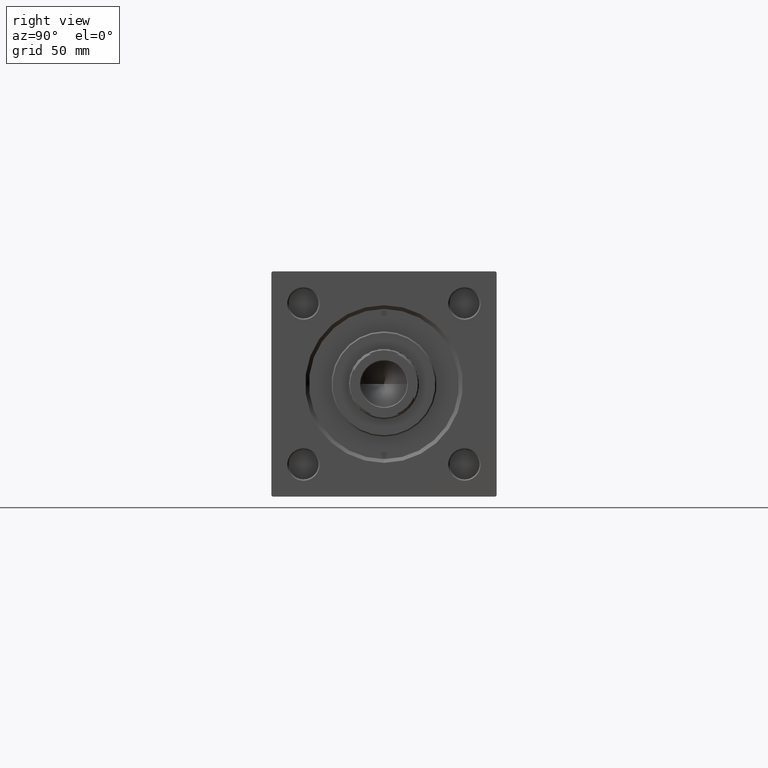
[diagram: clean part render]
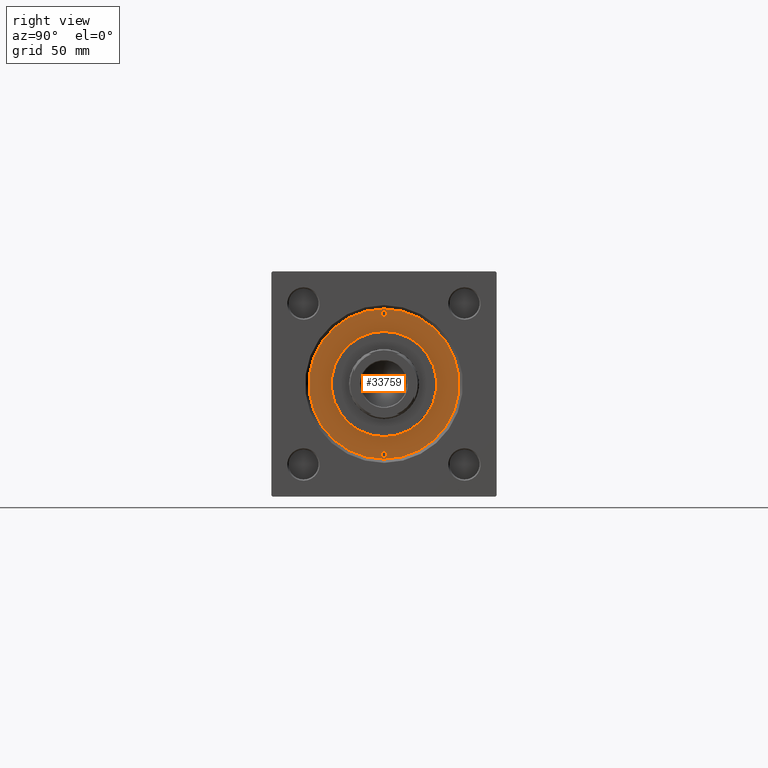
[diagram: same view with one face highlighted and labeled with its STEP entity id]
A machine part, right view. The second image highlights one B-rep face of the part: STEP entity #33759.
In plain terms, the highlighted planar face has unit normal (1, 0, 0).
Its self-contained STEP definition (entity closure, byte-faithful):
#374 = AXIS2_PLACEMENT_3D ( 'NONE', #46671, #12004, #3856 ) ;
#607 = CARTESIAN_POINT ( 'NONE',  ( 28.25000000000000000, 0.000000000000000000, 28.69999999999999929 ) ) ;
#936 = AXIS2_PLACEMENT_3D ( 'NONE', #24044, #19488, #4712 ) ;
#1952 = VERTEX_POINT ( 'NONE', #8815 ) ;
#2019 = CIRCLE ( 'NONE', #374, 1.249999999999997558 ) ;
#2055 = AXIS2_PLACEMENT_3D ( 'NONE', #13476, #38134, #7337 ) ;
#3856 = DIRECTION ( 'NONE',  ( 1.000000000000000000, 0.000000000000000000, 0.000000000000000000 ) ) ;
#4098 = EDGE_CURVE ( 'NONE', #46848, #12116, #42703, .T. ) ;
#4712 = DIRECTION ( 'NONE',  ( 1.000000000000000000, 0.000000000000000000, -0.000000000000000000 ) ) ;
#5040 = EDGE_CURVE ( 'NONE', #12116, #46848, #36192, .T. ) ;
#5316 = AXIS2_PLACEMENT_3D ( 'NONE', #607, #32622, #24497 ) ;
#5735 = EDGE_LOOP ( 'NONE', ( #27703, #26889 ) ) ;
#5949 = EDGE_CURVE ( 'NONE', #9160, #39323, #2019, .T. ) ;
#7337 = DIRECTION ( 'NONE',  ( 1.000000000000000000, 0.000000000000000000, 0.000000000000000000 ) ) ;
#7646 = EDGE_CURVE ( 'NONE', #40916, #1952, #12586, .T. ) ;
#8289 = FACE_BOUND ( 'NONE', #20244, .T. ) ;
#8747 = EDGE_LOOP ( 'NONE', ( #48838, #18049 ) ) ;
#8815 = CARTESIAN_POINT ( 'NONE',  ( -21.00000000000000000, 0.000000000000000000, 28.69999999999999929 ) ) ;
#9160 = VERTEX_POINT ( 'NONE', #47782 ) ;
#10380 = CARTESIAN_POINT ( 'NONE',  ( 21.00000000000000000, 2.571758278209441661E-15, 28.69999999999999929 ) ) ;
#11809 = EDGE_CURVE ( 'NONE', #1952, #40916, #39590, .T. ) ;
#11937 = CARTESIAN_POINT ( 'NONE',  ( 30.00000000000000000, 3.673940397442059178E-15, 28.69999999999999929 ) ) ;
#12004 = DIRECTION ( 'NONE',  ( 0.000000000000000000, 0.000000000000000000, 1.000000000000000000 ) ) ;
#12116 = VERTEX_POINT ( 'NONE', #13332 ) ;
#12586 = CIRCLE ( 'NONE', #2055, 21.00000000000000000 ) ;
#13332 = CARTESIAN_POINT ( 'NONE',  ( 27.00000000000000355, 1.530808498934192803E-16, 28.69999999999999929 ) ) ;
#13476 = CARTESIAN_POINT ( 'NONE',  ( 0.000000000000000000, 0.000000000000000000, 28.69999999999999929 ) ) ;
#13823 = DIRECTION ( 'NONE',  ( 0.000000000000000000, 0.000000000000000000, 1.000000000000000000 ) ) ;
#14155 = DIRECTION ( 'NONE',  ( 1.000000000000000000, 0.000000000000000000, 0.000000000000000000 ) ) ;
#15080 = CARTESIAN_POINT ( 'NONE',  ( -28.25000000000000000, 0.000000000000000000, 28.69999999999999929 ) ) ;
#17866 = ORIENTED_EDGE ( 'NONE', *, *, #4098, .F. ) ;
#17971 = CARTESIAN_POINT ( 'NONE',  ( 0.000000000000000000, 0.000000000000000000, 28.69999999999999929 ) ) ;
#18049 = ORIENTED_EDGE ( 'NONE', *, *, #19590, .T. ) ;
#18485 = DIRECTION ( 'NONE',  ( 1.000000000000000000, 0.000000000000000000, 0.000000000000000000 ) ) ;
#19488 = DIRECTION ( 'NONE',  ( 0.000000000000000000, 0.000000000000000000, 1.000000000000000000 ) ) ;
#19587 = EDGE_CURVE ( 'NONE', #42658, #48979, #49577, .T. ) ;
#19590 = EDGE_CURVE ( 'NONE', #48979, #42658, #43054, .T. ) ;
#20244 = EDGE_LOOP ( 'NONE', ( #17866, #46720 ) ) ;
#21117 = CARTESIAN_POINT ( 'NONE',  ( 0.000000000000000000, 0.000000000000000000, 28.69999999999999929 ) ) ;
#24044 = CARTESIAN_POINT ( 'NONE',  ( 0.000000000000000000, 0.000000000000000000, 28.69999999999999929 ) ) ;
#24497 = DIRECTION ( 'NONE',  ( 1.000000000000000000, 0.000000000000000000, 0.000000000000000000 ) ) ;
#24776 = AXIS2_PLACEMENT_3D ( 'NONE', #48748, #13823, #29337 ) ;
#25974 = AXIS2_PLACEMENT_3D ( 'NONE', #41408, #32807, #18485 ) ;
#26889 = ORIENTED_EDGE ( 'NONE', *, *, #5949, .F. ) ;
#27118 = FACE_OUTER_BOUND ( 'NONE', #8747, .T. ) ;
#27703 = ORIENTED_EDGE ( 'NONE', *, *, #48568, .F. ) ;
#28133 = CIRCLE ( 'NONE', #29768, 1.249999999999997558 ) ;
#29337 = DIRECTION ( 'NONE',  ( 1.000000000000000000, 0.000000000000000000, 0.000000000000000000 ) ) ;
#29768 = AXIS2_PLACEMENT_3D ( 'NONE', #15080, #42827, #38471 ) ;
#30167 = DIRECTION ( 'NONE',  ( 0.000000000000000000, 0.000000000000000000, 1.000000000000000000 ) ) ;
#30564 = ORIENTED_EDGE ( 'NONE', *, *, #11809, .F. ) ;
#30937 = FACE_BOUND ( 'NONE', #36996, .T. ) ;
#32622 = DIRECTION ( 'NONE',  ( 0.000000000000000000, 0.000000000000000000, 1.000000000000000000 ) ) ;
#32807 = DIRECTION ( 'NONE',  ( 0.000000000000000000, 0.000000000000000000, 1.000000000000000000 ) ) ;
#33759 = ADVANCED_FACE ( 'NONE', ( #35753, #8289, #30937, #27118 ), #46521, .T. ) ;
#35055 = CARTESIAN_POINT ( 'NONE',  ( -30.00000000000000000, 0.000000000000000000, 28.69999999999999929 ) ) ;
#35753 = FACE_BOUND ( 'NONE', #5735, .T. ) ;
#36192 = CIRCLE ( 'NONE', #5316, 1.249999999999997558 ) ;
#36996 = EDGE_LOOP ( 'NONE', ( #30564, #41316 ) ) ;
#38134 = DIRECTION ( 'NONE',  ( 0.000000000000000000, 0.000000000000000000, 1.000000000000000000 ) ) ;
#38288 = CARTESIAN_POINT ( 'NONE',  ( -27.00000000000000355, 0.000000000000000000, 28.69999999999999929 ) ) ;
#38471 = DIRECTION ( 'NONE',  ( 1.000000000000000000, 0.000000000000000000, 0.000000000000000000 ) ) ;
#39323 = VERTEX_POINT ( 'NONE', #38288 ) ;
#39590 = CIRCLE ( 'NONE', #45295, 21.00000000000000000 ) ;
#40916 = VERTEX_POINT ( 'NONE', #10380 ) ;
#41316 = ORIENTED_EDGE ( 'NONE', *, *, #7646, .F. ) ;
#41408 = CARTESIAN_POINT ( 'NONE',  ( 0.000000000000000000, 0.000000000000000000, 28.69999999999999929 ) ) ;
#42658 = VERTEX_POINT ( 'NONE', #35055 ) ;
#42703 = CIRCLE ( 'NONE', #24776, 1.249999999999997558 ) ;
#42827 = DIRECTION ( 'NONE',  ( 0.000000000000000000, 0.000000000000000000, 1.000000000000000000 ) ) ;
#43054 = CIRCLE ( 'NONE', #25974, 30.00000000000000000 ) ;
#44990 = DIRECTION ( 'NONE',  ( 0.000000000000000000, 0.000000000000000000, 1.000000000000000000 ) ) ;
#45295 = AXIS2_PLACEMENT_3D ( 'NONE', #17971, #44990, #14155 ) ;
#46016 = DIRECTION ( 'NONE',  ( 1.000000000000000000, 0.000000000000000000, 0.000000000000000000 ) ) ;
#46521 = PLANE ( 'NONE',  #936 ) ;
#46671 = CARTESIAN_POINT ( 'NONE',  ( -28.25000000000000000, 0.000000000000000000, 28.69999999999999929 ) ) ;
#46720 = ORIENTED_EDGE ( 'NONE', *, *, #5040, .F. ) ;
#46848 = VERTEX_POINT ( 'NONE', #47336 ) ;
#47336 = CARTESIAN_POINT ( 'NONE',  ( 29.50000000000000000, 0.000000000000000000, 28.69999999999999929 ) ) ;
#47782 = CARTESIAN_POINT ( 'NONE',  ( -29.50000000000000000, 1.530808498934192803E-16, 28.69999999999999929 ) ) ;
#47981 = AXIS2_PLACEMENT_3D ( 'NONE', #21117, #30167, #46016 ) ;
#48568 = EDGE_CURVE ( 'NONE', #39323, #9160, #28133, .T. ) ;
#48748 = CARTESIAN_POINT ( 'NONE',  ( 28.25000000000000000, 0.000000000000000000, 28.69999999999999929 ) ) ;
#48838 = ORIENTED_EDGE ( 'NONE', *, *, #19587, .T. ) ;
#48979 = VERTEX_POINT ( 'NONE', #11937 ) ;
#49577 = CIRCLE ( 'NONE', #47981, 30.00000000000000000 ) ;